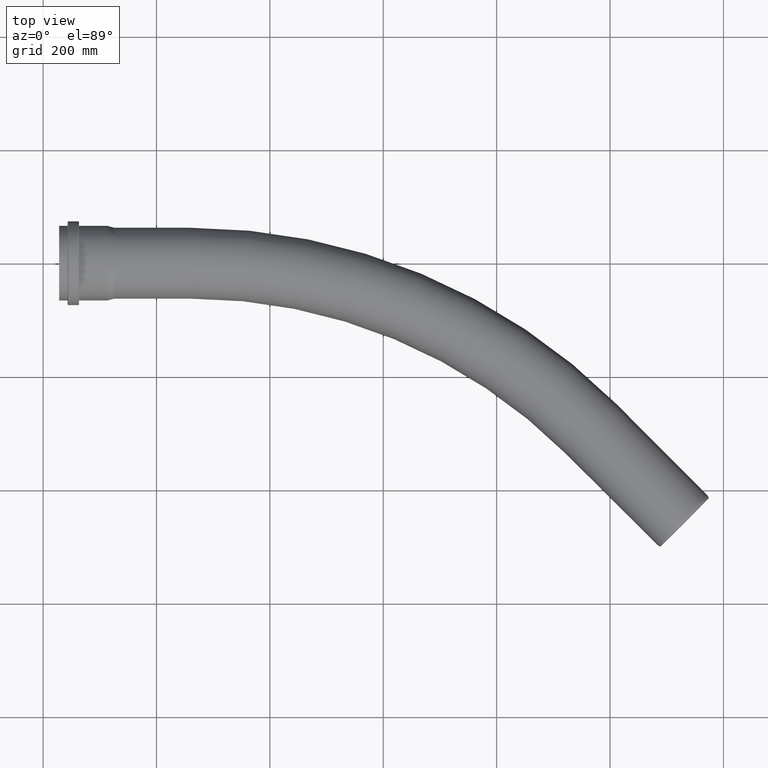
[diagram: clean part render]
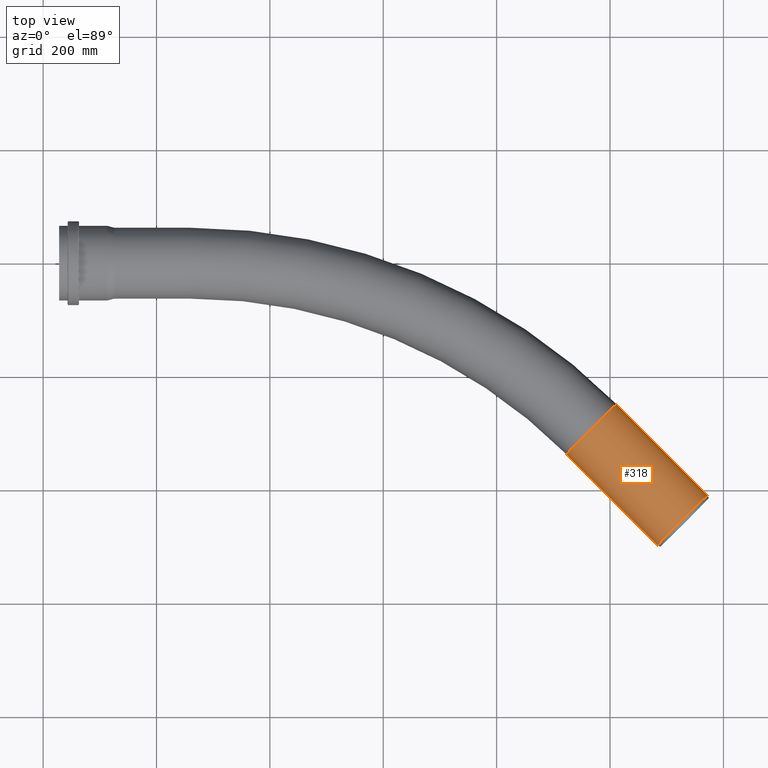
[diagram: same view with one face highlighted and labeled with its STEP entity id]
A machine part, top view. The second image highlights one B-rep face of the part: STEP entity #318.
In plain terms, the highlighted cylindrical surface (bore or boss wall) has radius 62.5 mm, axis along (0.7071, -0.7071, 0).
Its self-contained STEP definition (entity closure, byte-faithful):
#31=CYLINDRICAL_SURFACE('',#367,62.5);
#42=FACE_OUTER_BOUND('',#65,.T.);
#65=EDGE_LOOP('',(#229,#230,#231,#232,#233,#234));
#94=LINE('',#554,#107);
#107=VECTOR('',#431,62.5);
#120=CIRCLE('',#365,62.5);
#121=CIRCLE('',#366,62.5);
#122=CIRCLE('',#368,62.5);
#123=CIRCLE('',#369,62.5);
#152=VERTEX_POINT('',#547);
#153=VERTEX_POINT('',#549);
#154=VERTEX_POINT('',#553);
#155=VERTEX_POINT('',#555);
#181=EDGE_CURVE('',#152,#153,#120,.T.);
#182=EDGE_CURVE('',#153,#152,#121,.T.);
#183=EDGE_CURVE('',#153,#154,#94,.T.);
#184=EDGE_CURVE('',#154,#155,#122,.T.);
#185=EDGE_CURVE('',#155,#154,#123,.T.);
#229=ORIENTED_EDGE('',*,*,#181,.F.);
#230=ORIENTED_EDGE('',*,*,#182,.F.);
#231=ORIENTED_EDGE('',*,*,#183,.T.);
#232=ORIENTED_EDGE('',*,*,#184,.T.);
#233=ORIENTED_EDGE('',*,*,#185,.T.);
#234=ORIENTED_EDGE('',*,*,#183,.F.);
#318=ADVANCED_FACE('',(#42),#31,.T.);
#365=AXIS2_PLACEMENT_3D('',#550,#425,#426);
#366=AXIS2_PLACEMENT_3D('',#551,#427,#428);
#367=AXIS2_PLACEMENT_3D('',#552,#429,#430);
#368=AXIS2_PLACEMENT_3D('',#556,#432,#433);
#369=AXIS2_PLACEMENT_3D('',#557,#434,#435);
#425=DIRECTION('center_axis',(0.707106781186548,-0.707106781186547,0.));
#426=DIRECTION('ref_axis',(0.,0.,1.));
#427=DIRECTION('center_axis',(0.707106781186548,-0.707106781186547,0.));
#428=DIRECTION('ref_axis',(0.,0.,1.));
#429=DIRECTION('center_axis',(0.707106781186548,-0.707106781186547,0.));
#430=DIRECTION('ref_axis',(0.,0.,-1.));
#431=DIRECTION('',(-0.707106781186548,0.707106781186547,0.));
#432=DIRECTION('center_axis',(0.707106781186548,-0.707106781186547,0.));
#433=DIRECTION('ref_axis',(0.,0.,-1.));
#434=DIRECTION('center_axis',(0.707106781186548,-0.707106781186547,0.));
#435=DIRECTION('ref_axis',(0.,0.,-1.));
#547=CARTESIAN_POINT('',(927.895020515894,-453.406458142798,-62.5));
#549=CARTESIAN_POINT('',(927.895020515894,-453.406458142798,62.5));
#550=CARTESIAN_POINT('Origin',(927.895020515894,-453.406458142798,0.));
#551=CARTESIAN_POINT('Origin',(927.895020515894,-453.406458142798,0.));
#552=CARTESIAN_POINT('Origin',(767.381781186548,-292.893218813452,0.));
#553=CARTESIAN_POINT('',(767.381781186548,-292.893218813452,62.5));
#554=CARTESIAN_POINT('',(767.381781186548,-292.893218813452,62.5));
#555=CARTESIAN_POINT('',(723.187607362388,-337.087392637612,7.65404249467096E-15));
#556=CARTESIAN_POINT('Origin',(767.381781186548,-292.893218813452,0.));
#557=CARTESIAN_POINT('Origin',(767.381781186548,-292.893218813452,0.));